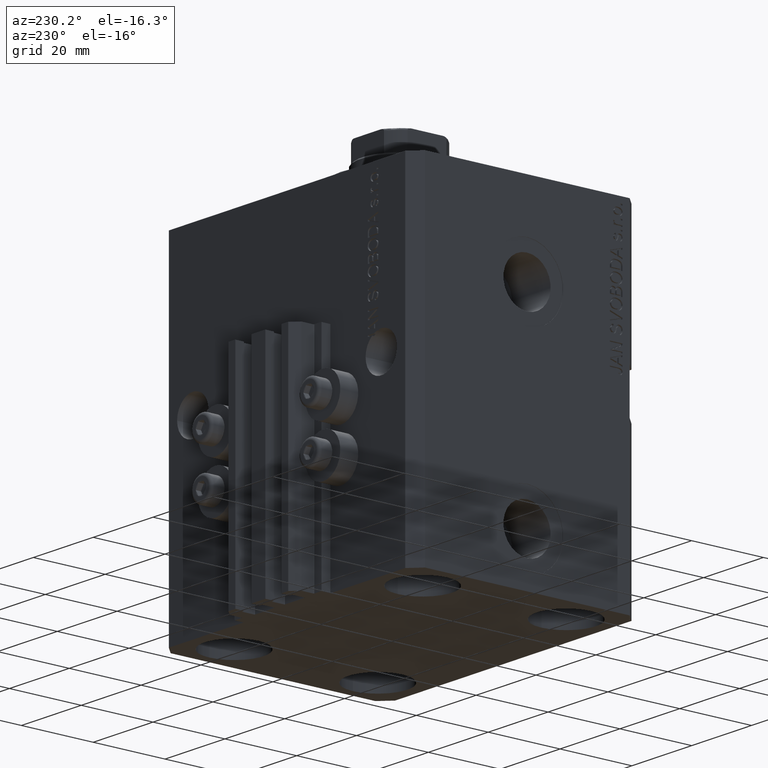
[diagram: clean part render]
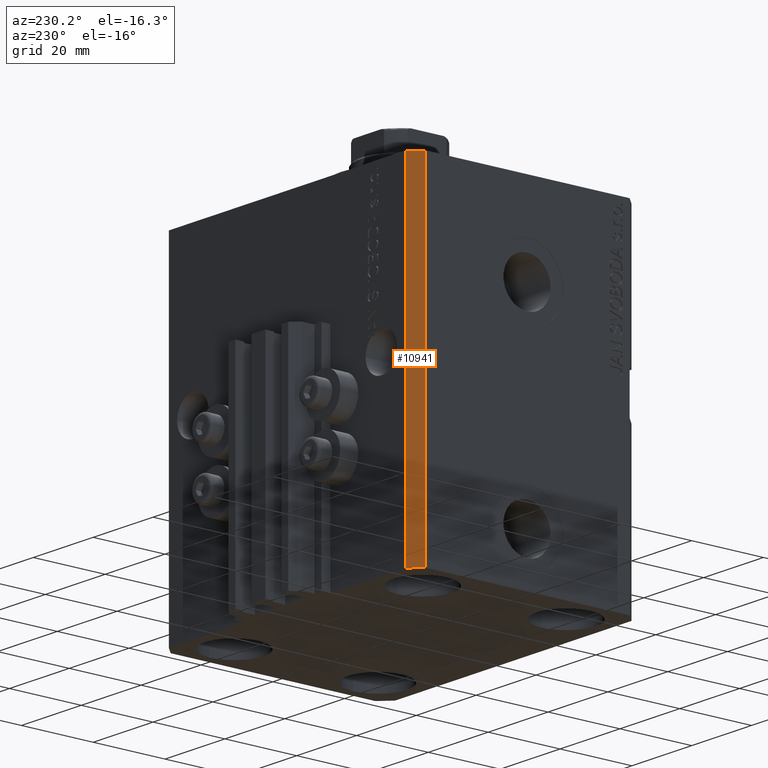
[diagram: same view with one face highlighted and labeled with its STEP entity id]
A machine part, auxiliary view. The second image highlights one B-rep face of the part: STEP entity #10941.
In plain terms, the highlighted planar face has unit normal (-0.7071, 0.7071, 0).
Its self-contained STEP definition (entity closure, byte-faithful):
#425 = ORIENTED_EDGE ( 'NONE', *, *, #13746, .T. ) ;
#1220 = ORIENTED_EDGE ( 'NONE', *, *, #43576, .T. ) ;
#1353 = VECTOR ( 'NONE', #44736, 1000.000000000000000 ) ;
#1788 = CARTESIAN_POINT ( 'NONE',  ( -39.50000000000000711, 31.50000000000000000, 0.000000000000000000 ) ) ;
#2469 = DIRECTION ( 'NONE',  ( -0.7071067811865471286, -0.7071067811865479058, 0.000000000000000000 ) ) ;
#3484 = CARTESIAN_POINT ( 'NONE',  ( -39.50000000000000711, 31.50000000000000000, -93.00000000000000000 ) ) ;
#4481 = CARTESIAN_POINT ( 'NONE',  ( -39.50000000000000711, 31.50000000000000000, -93.00000000000000000 ) ) ;
#4955 = LINE ( 'NONE', #4481, #9129 ) ;
#5008 = EDGE_CURVE ( 'NONE', #40611, #45184, #33026, .T. ) ;
#6341 = EDGE_CURVE ( 'NONE', #45184, #37657, #12952, .T. ) ;
#7996 = VERTEX_POINT ( 'NONE', #14980 ) ;
#9129 = VECTOR ( 'NONE', #19626, 1000.000000000000000 ) ;
#10157 = CARTESIAN_POINT ( 'NONE',  ( -39.50000000000000711, 31.50000000000000000, -93.00000000000000000 ) ) ;
#10385 = VECTOR ( 'NONE', #44560, 1000.000000000000000 ) ;
#10941 = ADVANCED_FACE ( 'NONE', ( #43825 ), #43122, .T. ) ;
#11970 = VECTOR ( 'NONE', #19701, 1000.000000000000000 ) ;
#11995 = CARTESIAN_POINT ( 'NONE',  ( -42.50000000000000000, 28.50000000000000000, -93.00000000000000000 ) ) ;
#12952 = LINE ( 'NONE', #45928, #11970 ) ;
#13746 = EDGE_CURVE ( 'NONE', #40611, #7996, #4955, .T. ) ;
#14721 = CARTESIAN_POINT ( 'NONE',  ( -39.50000000000000711, 31.50000000000000000, -93.00000000000000000 ) ) ;
#14980 = CARTESIAN_POINT ( 'NONE',  ( -42.50000000000000000, 28.50000000000000000, -93.00000000000000000 ) ) ;
#18642 = EDGE_LOOP ( 'NONE', ( #28457, #46106, #425, #1220 ) ) ;
#19626 = DIRECTION ( 'NONE',  ( -0.7071067811865471286, -0.7071067811865479058, 0.000000000000000000 ) ) ;
#19701 = DIRECTION ( 'NONE',  ( -0.7071067811865471286, -0.7071067811865479058, 0.000000000000000000 ) ) ;
#24418 = AXIS2_PLACEMENT_3D ( 'NONE', #10157, #24838, #2469 ) ;
#24576 = CARTESIAN_POINT ( 'NONE',  ( -42.50000000000000000, 28.50000000000000000, 0.000000000000000000 ) ) ;
#24838 = DIRECTION ( 'NONE',  ( -0.7071067811865479058, 0.7071067811865471286, 0.000000000000000000 ) ) ;
#28457 = ORIENTED_EDGE ( 'NONE', *, *, #6341, .F. ) ;
#33026 = LINE ( 'NONE', #14721, #10385 ) ;
#37657 = VERTEX_POINT ( 'NONE', #24576 ) ;
#40611 = VERTEX_POINT ( 'NONE', #3484 ) ;
#41831 = LINE ( 'NONE', #11995, #1353 ) ;
#43122 = PLANE ( 'NONE',  #24418 ) ;
#43576 = EDGE_CURVE ( 'NONE', #7996, #37657, #41831, .T. ) ;
#43825 = FACE_OUTER_BOUND ( 'NONE', #18642, .T. ) ;
#44560 = DIRECTION ( 'NONE',  ( 0.000000000000000000, 0.000000000000000000, 1.000000000000000000 ) ) ;
#44736 = DIRECTION ( 'NONE',  ( 0.000000000000000000, 0.000000000000000000, 1.000000000000000000 ) ) ;
#45184 = VERTEX_POINT ( 'NONE', #1788 ) ;
#45928 = CARTESIAN_POINT ( 'NONE',  ( -39.50000000000000711, 31.50000000000000000, 0.000000000000000000 ) ) ;
#46106 = ORIENTED_EDGE ( 'NONE', *, *, #5008, .F. ) ;